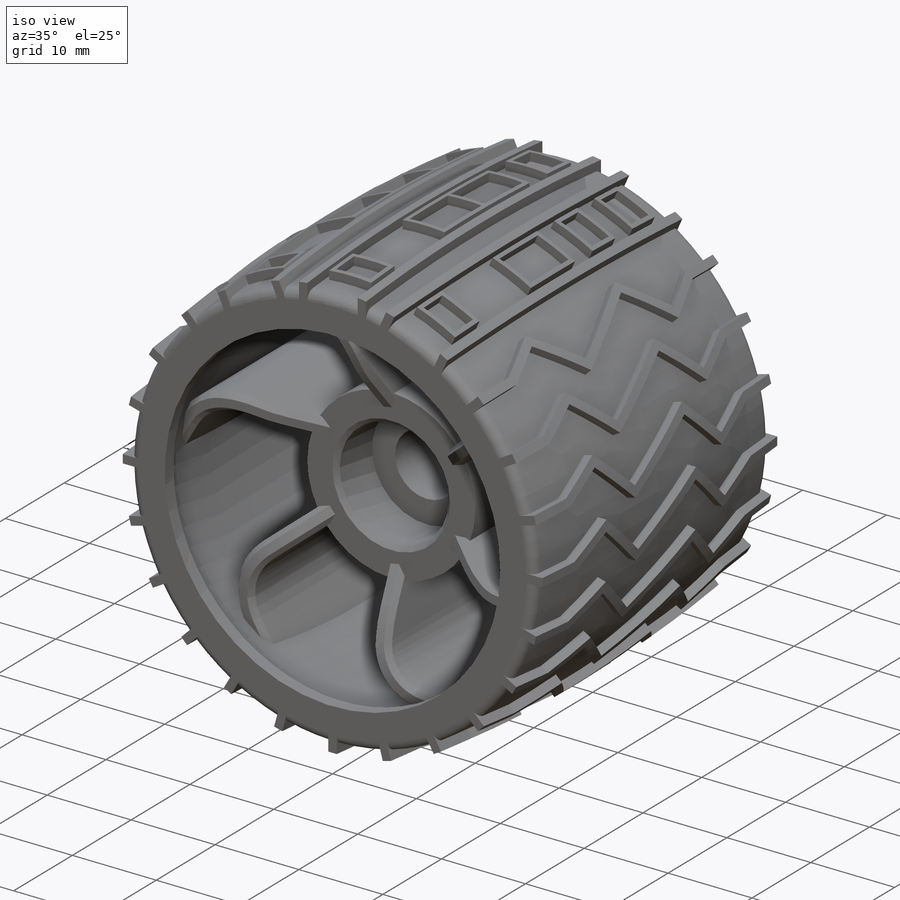
[diagram: iso view]
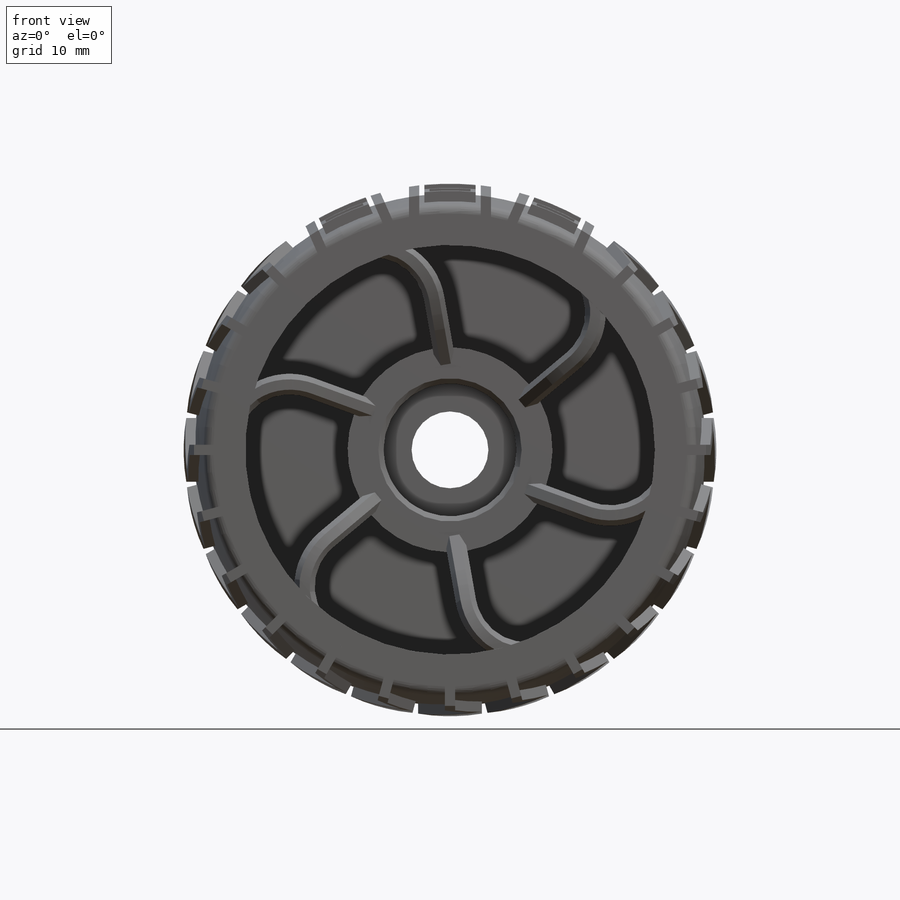
[diagram: front view]
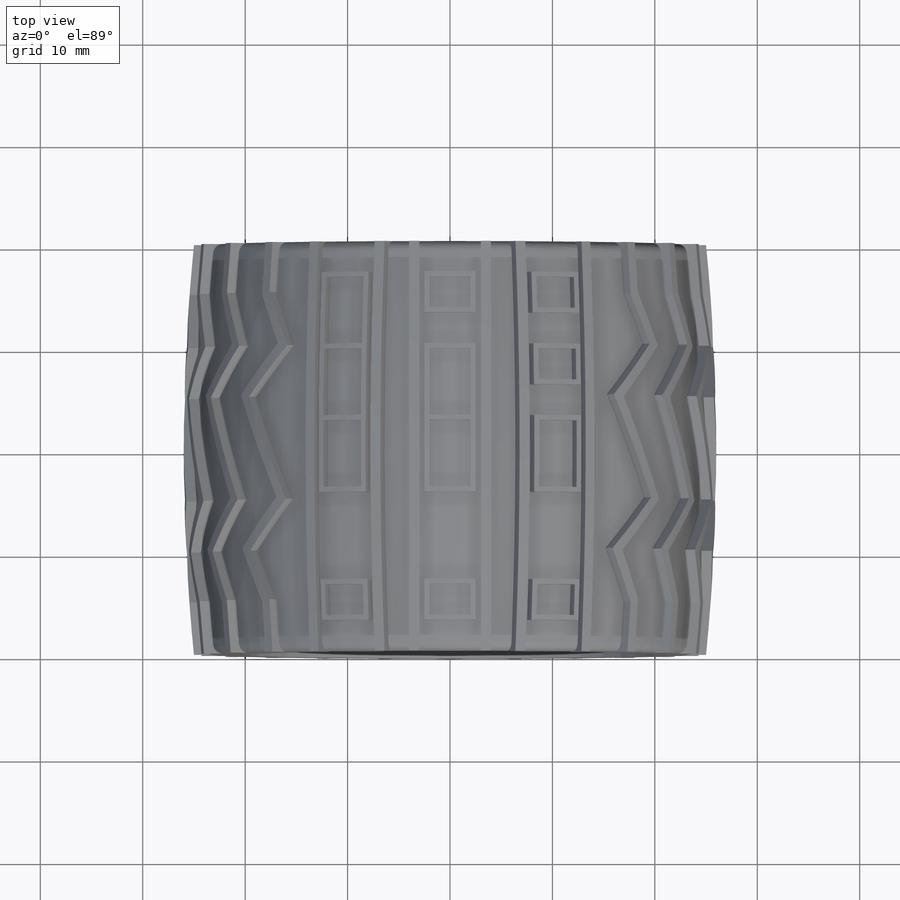
[diagram: top view]
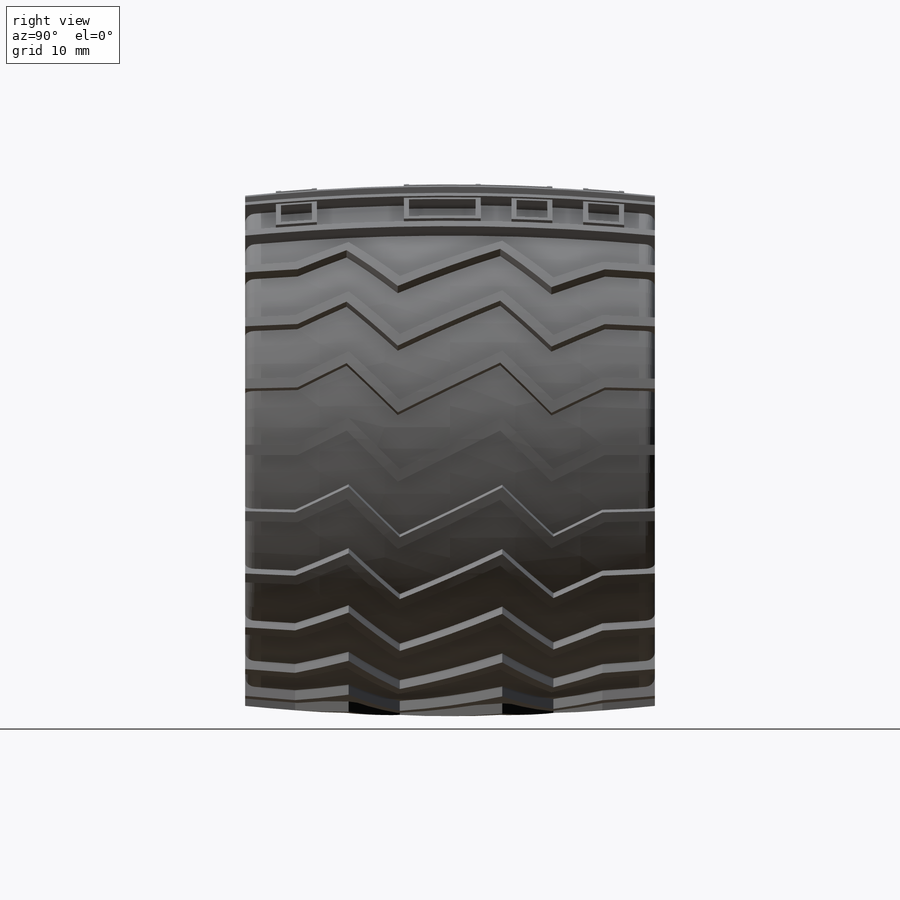
[diagram: right view]
SOLIDWORKS PART (.sldprt)
format: sldprt  version: not decoded by parser v0  size: 3,158,528 bytes
history: native  units: mm
features: sketch x15, extrude x7, fillet x3, chamfer x3, cut_extrude x3, pattern_circular x2, plane x2, material x1, revolve x1 (+13 scaffold rows collapsed)
feature tree (50):
  scaffold x13  (default folders/planes/origin — collapsed)
  material  "Material <not specified>"
  sketch  "Sketch1"  dims[c1.D5=200.0mm c1.D4=200.0mm c2.D5=197.0mm c2.D1=25.0mm c2.D2=20.0mm c2.D3=20.0mm c2.D4=40.0mm c2.D6=1.5mm c2.D7=1.5mm c3.D4=5.0mm c3.D8=5.0mm c4.D4=3.0mm c4.D8=4.0mm c4.D9=~0.053285mm c5.D4=162.9985mm c5.D5=3.0mm c5.D8=4.0mm c5.D9=~1.131934mm c6.D4=3.0mm c6.D5=3.0mm]
  revolve  "Revolve1"  Angle=360deg
  fillet  "Fillet2"  Radius=1mm
  sketch  "Sketch4"  dims[c1.D1=3.0mm c1.D2=3.0mm c1.D3=~48.343678mm c2.D1=2.5mm c2.D2=2.5mm c2.D3=5.0mm c2.D4=5.0mm c2.D5=5.0mm c2.D6=5.0mm c2.D7=5.0mm c2.D8=5.0mm c2.D9=5.0mm c2.D10=5.0mm c2.D11=~7.390814mm c2.D13=~0.020509mm c3.D11=0.5mm c3.D12=0.5mm]
  sketch  "Sketch5"
  extrude  "Boss-Extrude1"  Depth=28mm
  pattern_circular  "CirPattern1"  Count=24 Angle=360deg
  sketch  "Sketch7"  dims[c1.D1=~23.833599mm c2.D1=24.0deg c2.D2=25.0mm c3.D2=24.0deg]
  plane  "Plane2"
  plane  "Plane1"
  sketch  "Sketch9"  dims[c1.D1=2.0mm c1.D2=2.0mm c1.D3=1.0mm c1.D4=1.0mm c1.D5=3.0mm c1.D6=0.5mm c1.D7=0.5mm c1.D8=0.5mm c1.D9=0.5mm c1.D10=0.5mm c1.D11=0.5mm c1.D12=0.5mm c1.D13=3.0mm c1.D14=3.0mm c1.D15=3.0mm c1.D16=3.0mm c1.D17=3.0mm c1.D18=3.0mm c1.D19=1.0mm c1.D20=1.0mm c1.D21=3.5mm c1.D22=3.0mm c1.D23=6.5mm c2.D19=0.5mm c2.D23=0.5mm]
  extrude  "Boss-Extrude2"  Depth=28mm
  sketch  "Sketch12"  dims[c1.D1=2.0mm c1.D2=2.0mm c1.D3=1.0mm c1.D4=1.0mm c1.D5=3.0mm c1.D6=0.5mm c1.D7=0.5mm c1.D8=0.5mm c1.D9=0.5mm c1.D10=0.5mm c1.D11=0.5mm c1.D12=0.5mm c1.D13=3.0mm c1.D14=3.0mm c1.D15=3.0mm c1.D16=3.0mm c1.D17=3.0mm c1.D18=3.0mm c1.D19=1.0mm c1.D20=1.0mm c1.D21=3.5mm c1.D22=3.0mm c1.D23=4.0mm c2.D19=0.5mm c2.D23=0.5mm]
  extrude  "Boss-Extrude4"  Depth=28mm
  sketch  "Sketch13"  dims[c1.D1=2.0mm c1.D2=2.0mm c1.D3=1.0mm c1.D4=1.0mm c1.D5=3.0mm c1.D6=0.5mm c1.D7=0.5mm c1.D8=0.5mm c1.D9=0.5mm c1.D10=0.5mm c1.D11=0.5mm c1.D12=0.5mm c1.D13=3.0mm c1.D14=3.0mm c1.D15=3.0mm c1.D16=3.0mm c1.D17=3.0mm c1.D18=3.0mm c1.D19=1.0mm c1.D20=1.0mm c1.D21=3.5mm c1.D22=3.0mm c1.D23=6.5mm c2.D19=0.5mm c2.D23=0.5mm]
  extrude  "Boss-Extrude5"  Depth=28mm
  sketch  "Sketch3"  dims[c1.D3=~7.67643mm c1.D1=0.0mm c1.D2=1.0mm c2.D1=360.0deg c2.D3=10.0mm c2.D4=10.0mm c2.D7=0.0mm]
  sketch  "Sketch6"  dims[c1.D1=0.0mm c2.D1=360.0deg c2.D3=10.0mm c2.D4=1.0mm c2.D7=0.0mm]
  fillet  "Fillet1"  Radius=3mm
  sketch  "Sketch14"  dims[D1=~23.090888mm]
  extrude  "Boss-Extrude6"  Depth=5mm
  sketch  "Sketch15"  dims[D1=20.0mm]
  extrude  "Boss-Extrude7"  Depth=25mm
  sketch  "Sketch16"  dims[c1.D2=6.0mm c1.D1=14.0mm c2.D2=~6.840812mm c2.D3=5.0mm c2.D4=1.0mm]
  extrude  "Boss-Extrude8"  Depth=30mm
  chamfer  "Chamfer1"  Distance=8mm Angle=54deg
  fillet  "Fillet3"  Radius=13mm
  pattern_circular  "CirPattern2"  Count=6 Angle=360deg
  chamfer  "Chamfer3"  Distance=0.5mm Angle=54deg
  sketch  "Sketch17"  dims[D1=7.5mm]
  cut_extrude  "Cut-Extrude1"  [1 undecoded]
  sketch  "Sketch18"  dims[D1=13.0mm]
  cut_extrude  "Cut-Extrude2"  Depth=6mm
  sketch  "Sketch19"  dims[D1=~20.683142mm]
  cut_extrude  "Cut-Extrude3"  Depth=6mm
  chamfer  "Chamfer4"  Distance=0.5mm Angle=45deg
decode coverage: 32 of 34 modeling features carry decoded parameters
note: ~ marks probable driven/reference dimensions
note: 1 parameter value undecoded
note: suppression state not decoded; provenance and decode notes live in map.json
